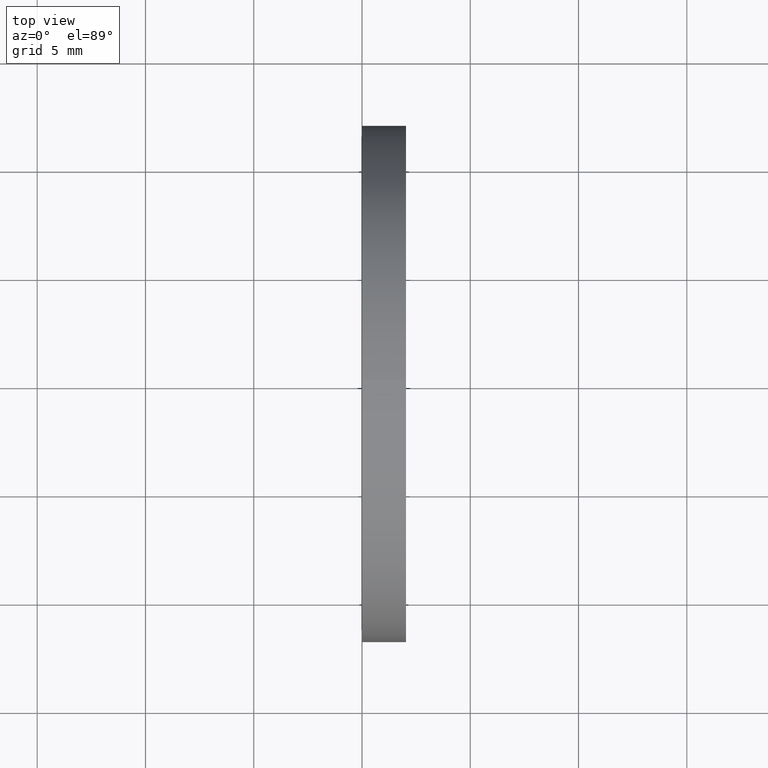
[diagram: clean part render]
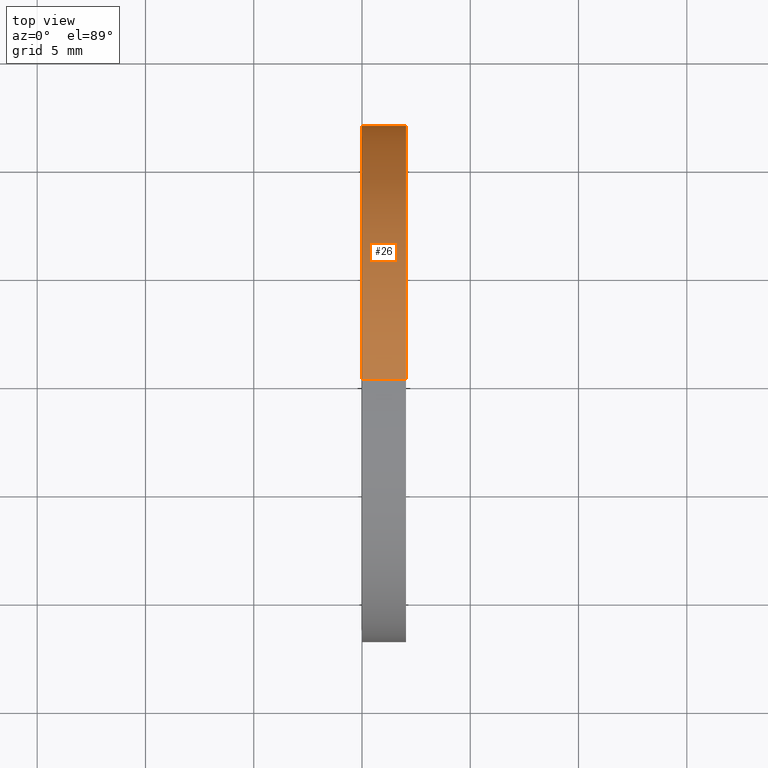
[diagram: same view with one face highlighted and labeled with its STEP entity id]
A machine part, top view. The second image highlights one B-rep face of the part: STEP entity #26.
In plain terms, the highlighted cylindrical surface (partial cylindrical patch) has radius 11.938 mm, axis along (-1, 0, 0).
Its self-contained STEP definition (entity closure, byte-faithful):
#1 = ORIENTED_EDGE ( 'NONE', *, *, #2, .T. ) ;
#2 = EDGE_CURVE ( 'NONE', #3, #11, #25, .T. ) ;
#3 = VERTEX_POINT ( 'NONE', #20 ) ;
#11 = VERTEX_POINT ( 'NONE', #63 ) ;
#12 = VERTEX_POINT ( 'NONE', #66 ) ;
#20 = CARTESIAN_POINT ( 'NONE',  ( 0.07999999999999996000, 0.0000000000000000000, 0.4699999999999999700 ) ) ;
#21 = DIRECTION ( 'NONE',  ( 0.0000000000000000000, 0.0000000000000000000, 1.000000000000000000 ) ) ;
#22 = DIRECTION ( 'NONE',  ( -1.000000000000000000, 0.0000000000000000000, 0.0000000000000000000 ) ) ;
#23 = CARTESIAN_POINT ( 'NONE',  ( 0.07999999999999996000, 0.0000000000000000000, 0.0000000000000000000 ) ) ;
#24 = AXIS2_PLACEMENT_3D ( 'NONE', #23, #22, #21 ) ;
#25 = CIRCLE ( 'NONE', #24, 0.4699999999999999700 ) ;
#26 = ADVANCED_FACE ( 'NONE', ( #94 ), #93, .T. ) ;
#27 = EDGE_LOOP ( 'NONE', ( #1, #233, #235, #238 ) ) ;
#63 = CARTESIAN_POINT ( 'NONE',  ( 0.07999999999999996000, 5.755839955992559700E-017, -0.4699999999999999700 ) ) ;
#66 = CARTESIAN_POINT ( 'NONE',  ( 0.0000000000000000000, 5.755839955992559700E-017, -0.4699999999999999700 ) ) ;
#72 = DIRECTION ( 'NONE',  ( -1.000000000000000000, 0.0000000000000000000, 0.0000000000000000000 ) ) ;
#78 = DIRECTION ( 'NONE',  ( 0.0000000000000000000, 0.0000000000000000000, 1.000000000000000000 ) ) ;
#79 = AXIS2_PLACEMENT_3D ( 'NONE', #91, #72, #78 ) ;
#91 = CARTESIAN_POINT ( 'NONE',  ( -1.721125226614714300, 0.0000000000000000000, 0.0000000000000000000 ) ) ;
#93 = CYLINDRICAL_SURFACE ( 'NONE', #79, 0.4699999999999999700 ) ;
#94 = FACE_OUTER_BOUND ( 'NONE', #27, .T. ) ;
#104 = DIRECTION ( 'NONE',  ( -1.000000000000000000, 0.0000000000000000000, 0.0000000000000000000 ) ) ;
#105 = VECTOR ( 'NONE', #104, 39.37007874015748100 ) ;
#106 = CARTESIAN_POINT ( 'NONE',  ( -1.721125226614714300, 5.755839955992559700E-017, -0.4699999999999999700 ) ) ;
#107 = LINE ( 'NONE', #106, #105 ) ;
#111 = CIRCLE ( 'NONE', #139, 0.4699999999999999700 ) ;
#112 = CARTESIAN_POINT ( 'NONE',  ( 0.0000000000000000000, 0.0000000000000000000, 0.0000000000000000000 ) ) ;
#113 = DIRECTION ( 'NONE',  ( -1.000000000000000000, 0.0000000000000000000, 0.0000000000000000000 ) ) ;
#119 = CARTESIAN_POINT ( 'NONE',  ( 0.0000000000000000000, 0.0000000000000000000, 0.4699999999999999700 ) ) ;
#120 = DIRECTION ( 'NONE',  ( 0.0000000000000000000, 0.0000000000000000000, 1.000000000000000000 ) ) ;
#123 = DIRECTION ( 'NONE',  ( -1.000000000000000000, 0.0000000000000000000, 0.0000000000000000000 ) ) ;
#124 = VECTOR ( 'NONE', #123, 39.37007874015748100 ) ;
#139 = AXIS2_PLACEMENT_3D ( 'NONE', #112, #113, #120 ) ;
#179 = CARTESIAN_POINT ( 'NONE',  ( -1.721125226614714300, 0.0000000000000000000, 0.4699999999999999700 ) ) ;
#180 = LINE ( 'NONE', #179, #124 ) ;
#233 = ORIENTED_EDGE ( 'NONE', *, *, #234, .T. ) ;
#234 = EDGE_CURVE ( 'NONE', #11, #12, #107, .T. ) ;
#235 = ORIENTED_EDGE ( 'NONE', *, *, #236, .F. ) ;
#236 = EDGE_CURVE ( 'NONE', #237, #12, #111, .T. ) ;
#237 = VERTEX_POINT ( 'NONE', #119 ) ;
#238 = ORIENTED_EDGE ( 'NONE', *, *, #239, .F. ) ;
#239 = EDGE_CURVE ( 'NONE', #3, #237, #180, .T. ) ;